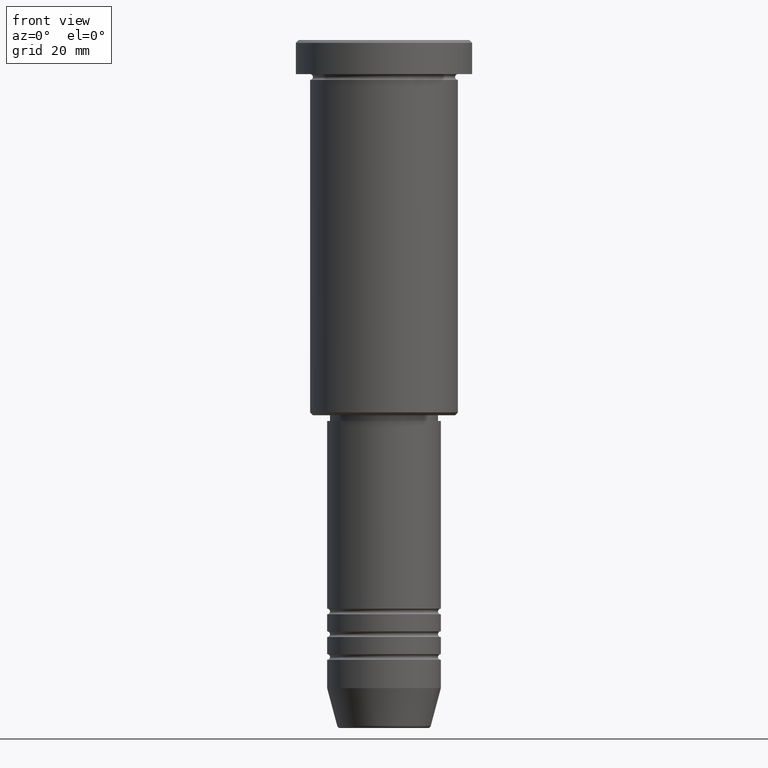
[diagram: clean part render]
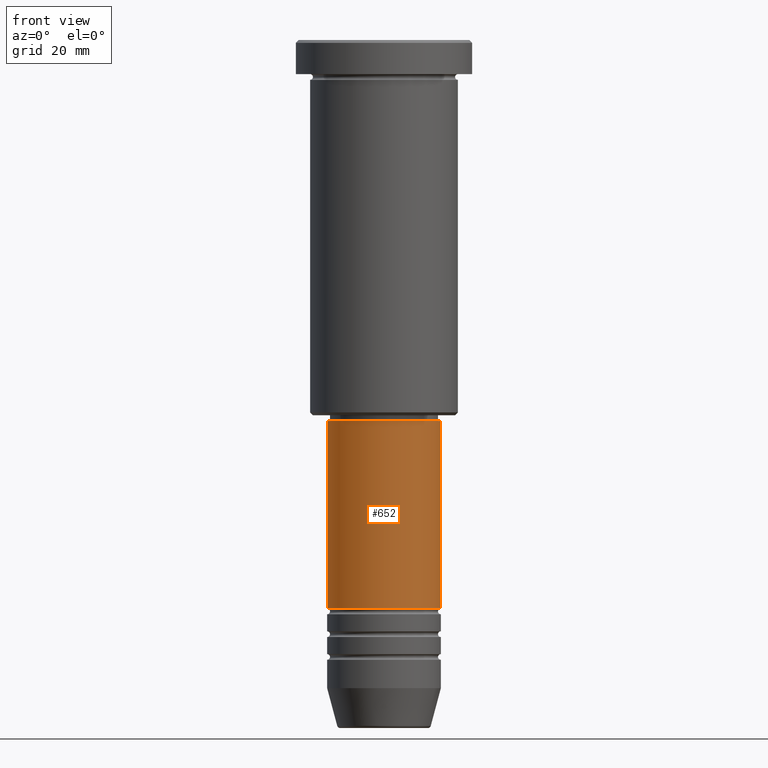
[diagram: same view with one face highlighted and labeled with its STEP entity id]
A machine part, front view. The second image highlights one B-rep face of the part: STEP entity #652.
In plain terms, the highlighted cylindrical surface (partial cylindrical patch) has radius 10 mm, axis along (-0, -0, 1).
Its self-contained STEP definition (entity closure, byte-faithful):
#30 = ORIENTED_EDGE ( 'NONE', *, *, #1060, .F. ) ;
#48 = VERTEX_POINT ( 'NONE', #131 ) ;
#90 = DIRECTION ( 'NONE',  ( -0.000000000000000000, -0.000000000000000000, 1.000000000000000000 ) ) ;
#105 = VERTEX_POINT ( 'NONE', #250 ) ;
#127 = VECTOR ( 'NONE', #550, 1000.000000000000000 ) ;
#129 = DIRECTION ( 'NONE',  ( -0.000000000000000000, -0.000000000000000000, 1.000000000000000000 ) ) ;
#131 = CARTESIAN_POINT ( 'NONE',  ( -9.999999999999998224, 1.224646799147353256E-15, -67.00000000000000000 ) ) ;
#177 = CARTESIAN_POINT ( 'NONE',  ( 10.00000000000000178, 0.000000000000000000, -99.99999999999990052 ) ) ;
#211 = LINE ( 'NONE', #1023, #841 ) ;
#232 = VERTEX_POINT ( 'NONE', #177 ) ;
#250 = CARTESIAN_POINT ( 'NONE',  ( 9.999999999999998224, 0.000000000000000000, -67.00000000000000000 ) ) ;
#309 = FACE_OUTER_BOUND ( 'NONE', #1177, .T. ) ;
#371 = DIRECTION ( 'NONE',  ( -0.000000000000000000, -0.000000000000000000, 1.000000000000000000 ) ) ;
#388 = CARTESIAN_POINT ( 'NONE',  ( 0.000000000000000000, 0.000000000000000000, -67.00000000000000000 ) ) ;
#412 = AXIS2_PLACEMENT_3D ( 'NONE', #525, #90, #693 ) ;
#460 = LINE ( 'NONE', #819, #127 ) ;
#488 = EDGE_CURVE ( 'NONE', #1068, #232, #690, .T. ) ;
#525 = CARTESIAN_POINT ( 'NONE',  ( 0.000000000000000000, 0.000000000000000000, -99.99999999999990052 ) ) ;
#550 = DIRECTION ( 'NONE',  ( -0.000000000000000000, -0.000000000000000000, 1.000000000000000000 ) ) ;
#556 = DIRECTION ( 'NONE',  ( -0.000000000000000000, -0.000000000000000000, 1.000000000000000000 ) ) ;
#607 = CYLINDRICAL_SURFACE ( 'NONE', #861, 10.00000000000000000 ) ;
#652 = ADVANCED_FACE ( 'NONE', ( #309 ), #607, .T. ) ;
#690 = CIRCLE ( 'NONE', #412, 10.00000000000000178 ) ;
#693 = DIRECTION ( 'NONE',  ( 1.000000000000000000, 0.000000000000000000, 0.000000000000000000 ) ) ;
#724 = ORIENTED_EDGE ( 'NONE', *, *, #488, .T. ) ;
#744 = EDGE_CURVE ( 'NONE', #48, #105, #919, .T. ) ;
#747 = DIRECTION ( 'NONE',  ( 1.000000000000000000, 0.000000000000000000, 0.000000000000000000 ) ) ;
#784 = EDGE_CURVE ( 'NONE', #232, #105, #211, .T. ) ;
#819 = CARTESIAN_POINT ( 'NONE',  ( -10.00000000000000000, 1.224646799147353256E-15, 0.000000000000000000 ) ) ;
#841 = VECTOR ( 'NONE', #129, 1000.000000000000000 ) ;
#855 = CARTESIAN_POINT ( 'NONE',  ( 0.000000000000000000, 0.000000000000000000, 0.000000000000000000 ) ) ;
#861 = AXIS2_PLACEMENT_3D ( 'NONE', #855, #371, #940 ) ;
#904 = CARTESIAN_POINT ( 'NONE',  ( -10.00000000000000178, 1.224646799147353454E-15, -99.99999999999990052 ) ) ;
#919 = CIRCLE ( 'NONE', #1035, 9.999999999999998224 ) ;
#940 = DIRECTION ( 'NONE',  ( 1.000000000000000000, 0.000000000000000000, 0.000000000000000000 ) ) ;
#980 = ORIENTED_EDGE ( 'NONE', *, *, #784, .T. ) ;
#1004 = ORIENTED_EDGE ( 'NONE', *, *, #744, .F. ) ;
#1023 = CARTESIAN_POINT ( 'NONE',  ( 10.00000000000000000, 0.000000000000000000, 0.000000000000000000 ) ) ;
#1035 = AXIS2_PLACEMENT_3D ( 'NONE', #388, #556, #747 ) ;
#1060 = EDGE_CURVE ( 'NONE', #1068, #48, #460, .T. ) ;
#1068 = VERTEX_POINT ( 'NONE', #904 ) ;
#1177 = EDGE_LOOP ( 'NONE', ( #30, #724, #980, #1004 ) ) ;